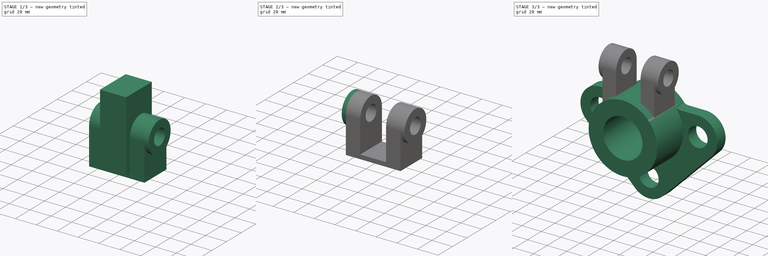
[diagram: build sequence overview — one tinted view per stage of 3, left to right]
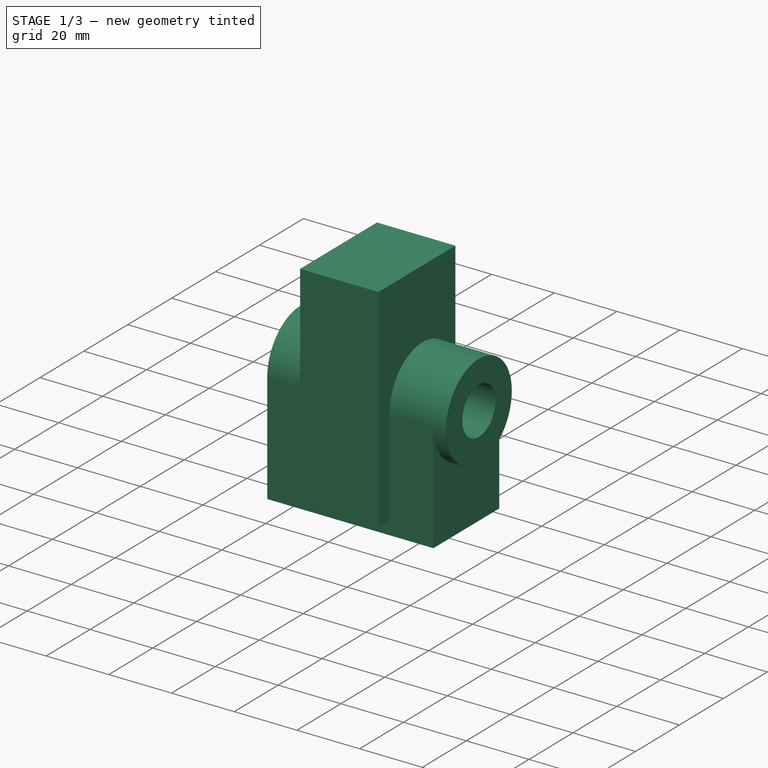
[diagram: stage 1 of 3 — iso view after this stage's code; geometry added in this stage tinted green]
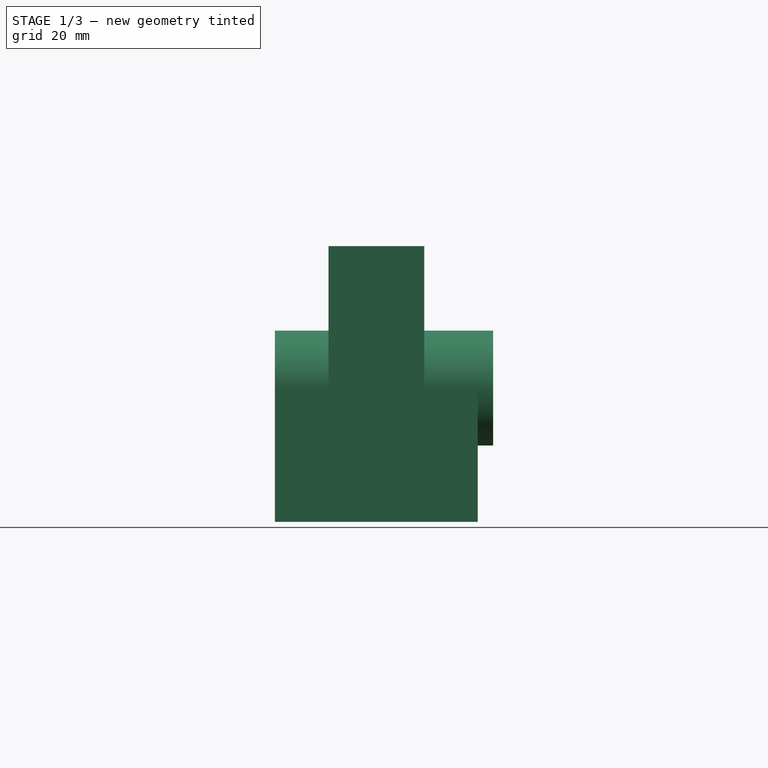
[diagram: stage 1 of 3 — front view after this stage's code; geometry added in this stage tinted green]
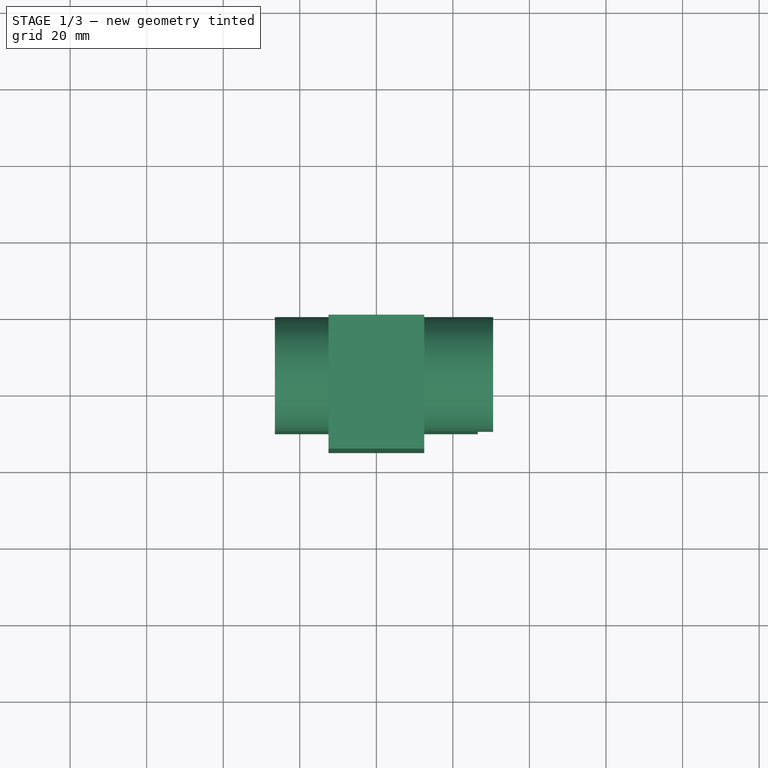
[diagram: stage 1 of 3 — top view after this stage's code; geometry added in this stage tinted green]
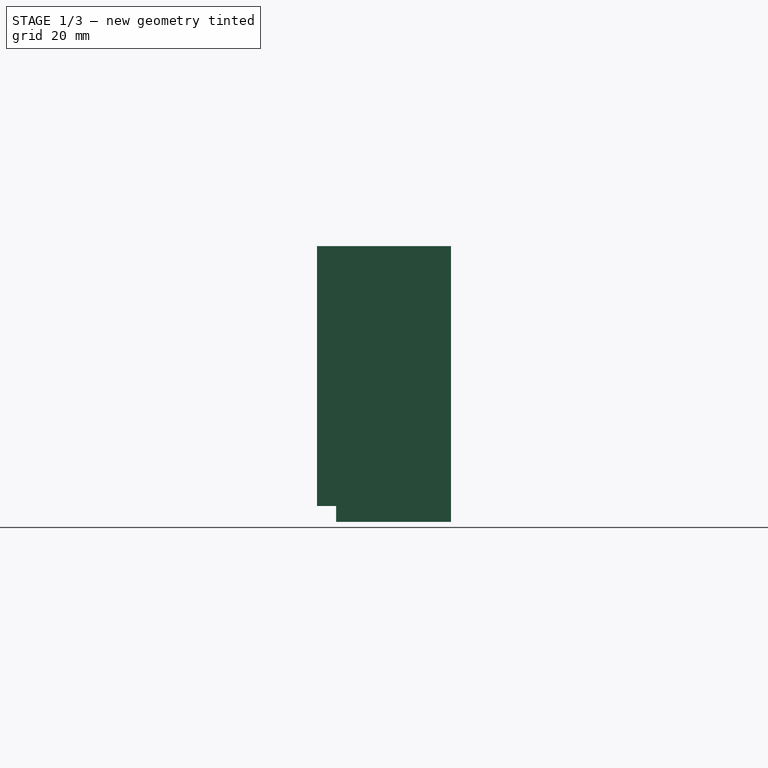
[diagram: stage 1 of 3 — right view after this stage's code; geometry added in this stage tinted green]
FCSTD DOCUMENT  (FreeCAD 0.16R6700 (Git))
Label: ejer8
License: All rights reserved
LicenseURL: http://en.wikipedia.org/wiki/All_rights_reserved
objects: Sketcher::SketchObject×8, PartDesign::Pad×6, PartDesign::Pocket×1, Part::Cut×1
note: 23 computed .brp shape members not serialized (recipe doc carries the construction recipe); baked Part::Feature solids carry a one-line shape summary decoded from their .brp

FEATURE [Sketcher::SketchObject] Sketch003
  Placement = pos=(0,0,0) rot=(0.57735,0.57735,0.57735;2.0944rad)
  sketch-geometry (6):
    g0: LineSegment [constr] StartX=0 StartY=55 StartZ=0 EndX=-15 EndY=55 EndZ=0
    g1: ArcOfCircle CenterX=-15 CenterY=55 CenterZ=0 NormalX=0 NormalY=0 NormalZ=1 Radius=15 StartAngle=6.28133 EndAngle=9.425
    g2: Circle CenterX=-15 CenterY=55 CenterZ=0 NormalX=0 NormalY=0 NormalZ=1 Radius=7.5
    g3: LineSegment StartX=-30 StartY=54.9967 StartZ=0 EndX=-30 EndY=20.06 EndZ=0
    g4: LineSegment StartX=-30 StartY=20.06 StartZ=0 EndX=3.56673e-07 EndY=20.06 EndZ=0
    g5: LineSegment StartX=3.56673e-07 StartY=20.06 StartZ=0 EndX=-2.58777e-05 EndY=54.9721 EndZ=0
  constraints (15):
    c: DistanceX(g0,g0) = 15
    c: PointOnObject(g0,g-2)
    c: DistanceY(g-1,g0) = 55
    c: Horizontal(g0)
    c: Coincident(g0,g1)
    c: Coincident(g0,g2)
    c: Radius(g1) = 15
    c: Radius(g2) = 7.5
    c: Coincident(g3,g4)
    c: Coincident(g4,g5)
    c: DistanceX(g4,g4) = 30
    c: Vertical(g3)
    c: Horizontal(g4)
    c: Coincident(g1,g5)
    c: Coincident(g1,g3)
FEATURE [PartDesign::Pad] Pad002
  Length = 53
  Length2 = 100
  Midplane = true
  Placement = pos=(0,0,0) rot=(0.57735,0.57735,0.57735;2.0944rad)
  Sketch = -> Sketch003
  Type = 0
FEATURE [Sketcher::SketchObject] Sketch004
  ExternalGeometry = -> [Pad002]
  Placement = pos=(26.5,0,0) rot=(0.57735,0.57735,0.57735;2.0944rad)
  Support = -> Pad002 [Face7]
  sketch-geometry (2):
    g0: Circle CenterX=-15 CenterY=55 CenterZ=0 NormalX=0 NormalY=0 NormalZ=1 Radius=15
    g1: Circle CenterX=-15 CenterY=55 CenterZ=0 NormalX=0 NormalY=0 NormalZ=1 Radius=7.51935
  constraints (5):
    c: Coincident(g0,g1)
    c: Coincident(g0,g-4)
    c: Radius(g-4) = 7.5
    c: Radius(g-4) = 7.5
    c: Radius(g0) = 15
FEATURE [PartDesign::Pad] Pad003
  Length = 4
  Length2 = 100
  Placement = pos=(0,0,0) rot=(0.57735,0.57735,0.57735;2.0944rad)
  Sketch = -> Sketch004
  Type = 0
FEATURE [Sketcher::SketchObject] Sketch006
  Placement = pos=(0,0,0) rot=(0.57735,0.57735,0.57735;2.0944rad)
FEATURE [Sketcher::SketchObject] Sketch007
  Placement = pos=(0,0,0) rot=(-1,0,0;4.71239rad)
  sketch-geometry (4):
    g0: LineSegment StartX=-12.5 StartY=92.0677 StartZ=0 EndX=12.5 EndY=92.0677 EndZ=0
    g1: LineSegment StartX=12.5 StartY=92.0677 StartZ=0 EndX=12.5 EndY=24.1999 EndZ=0
    g2: LineSegment StartX=12.5 StartY=24.1999 StartZ=0 EndX=-12.5 EndY=24.1999 EndZ=0
    g3: LineSegment StartX=-12.5 StartY=24.1999 StartZ=0 EndX=-12.5 EndY=92.0677 EndZ=0
  constraints (10):
    c: Coincident(g0,g1)
    c: Coincident(g1,g2)
    c: Coincident(g2,g3)
    c: Coincident(g3,g0)
    c: Horizontal(g0)
    c: Horizontal(g2)
    c: Vertical(g1)
    c: Vertical(g3)
    c: DistanceX(g0,g0) = 25
    c: Symmetric(g0,g0,g-2)
FEATURE [PartDesign::Pad] Pad005
  Length = 35
  Length2 = 100
  Placement = pos=(0,0,0) rot=(-1,0,0;4.71239rad)
  Sketch = -> Sketch007
  Type = 0
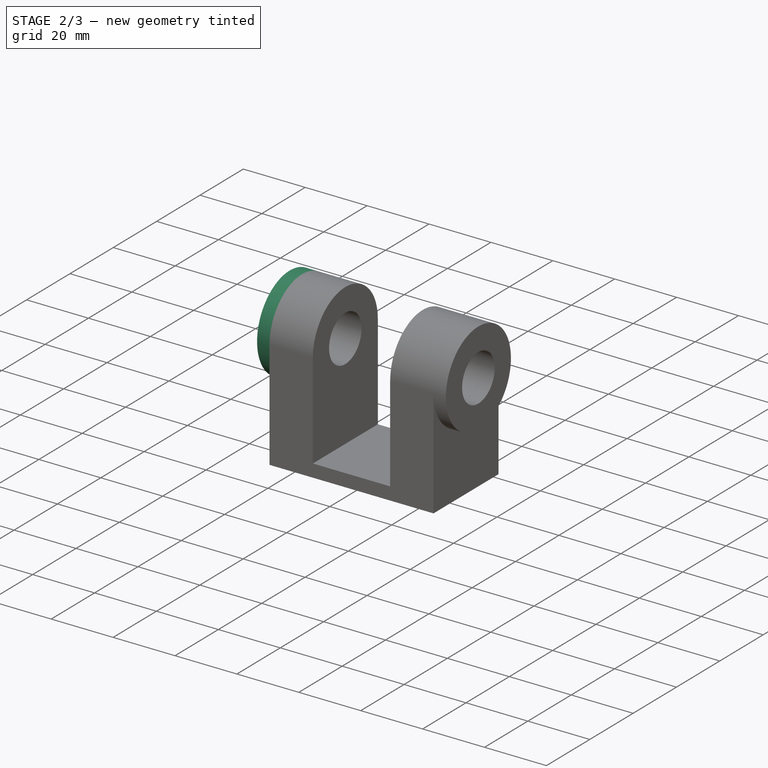
[diagram: stage 2 of 3 — iso view after this stage's code; geometry added in this stage tinted green]
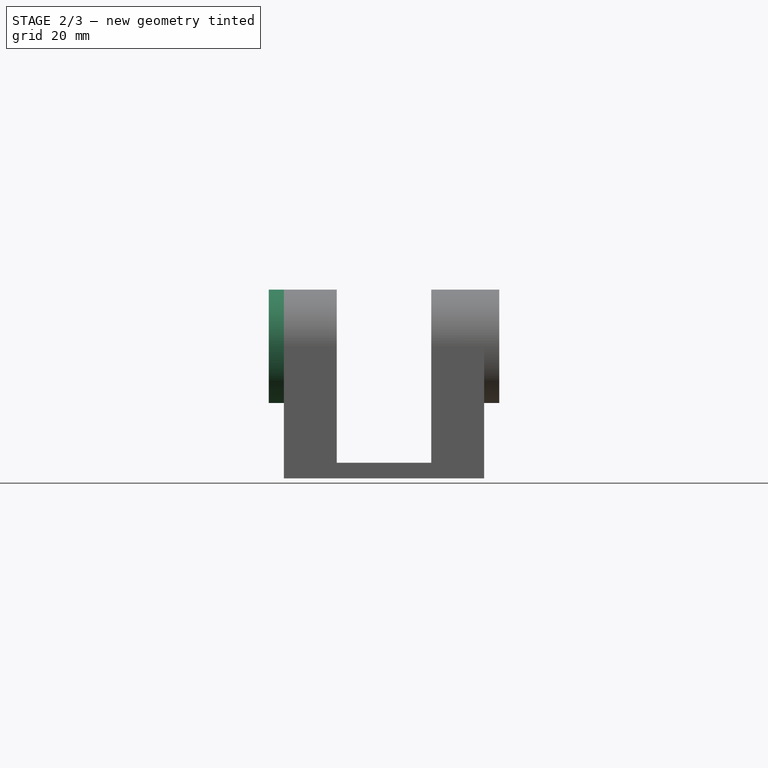
[diagram: stage 2 of 3 — front view after this stage's code; geometry added in this stage tinted green]
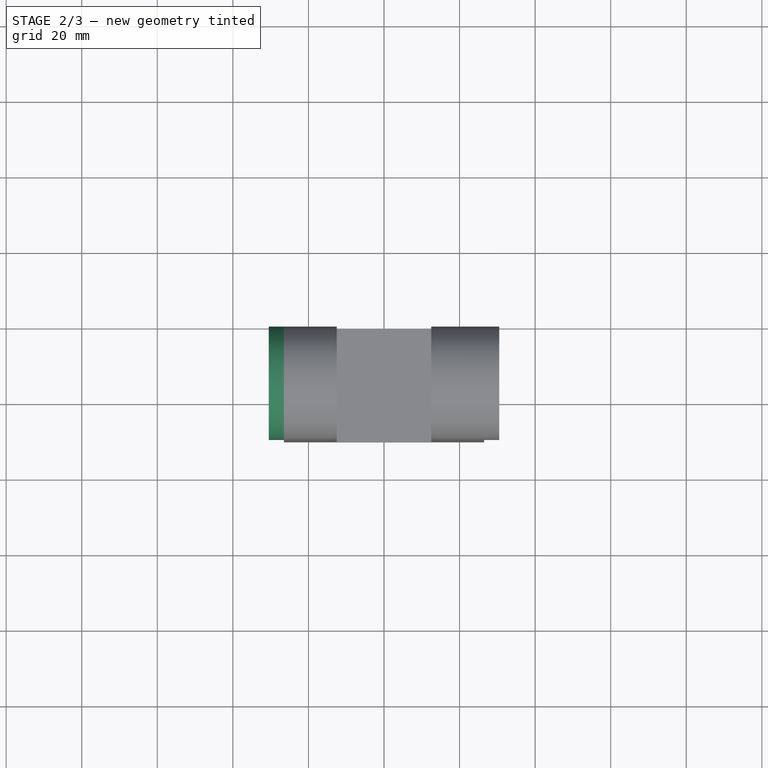
[diagram: stage 2 of 3 — top view after this stage's code; geometry added in this stage tinted green]
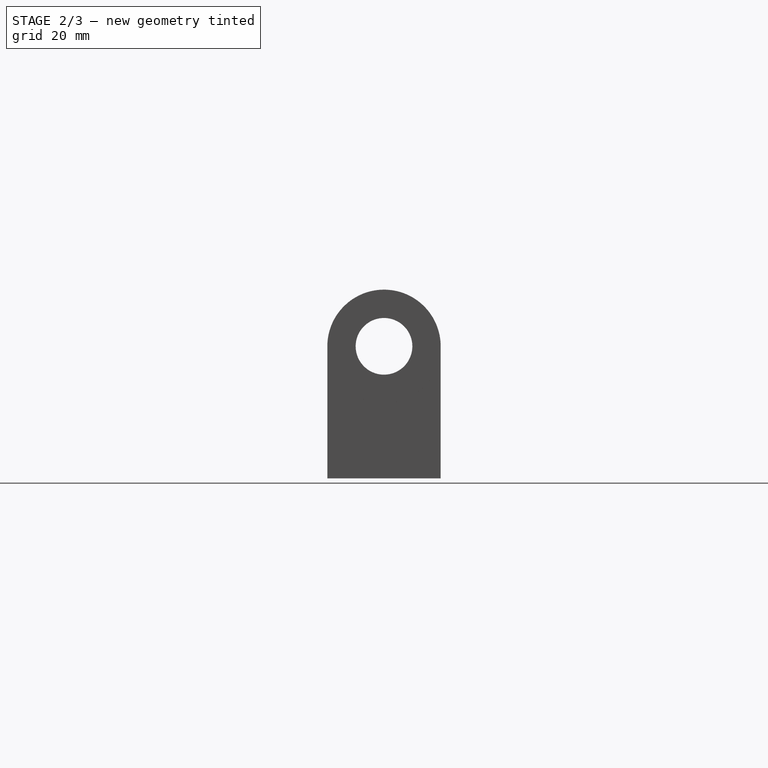
[diagram: stage 2 of 3 — right view after this stage's code; geometry added in this stage tinted green]
FEATURE [Sketcher::SketchObject] Sketch005
  ExternalGeometry = -> [Pad003]
  Placement = pos=(-26.5,0,0) rot=(0.57735,0.57735,-0.57735;4.18879rad)
  Support = -> Pad003 [Face3]
  sketch-geometry (2):
    g0: Circle CenterX=-15 CenterY=-55 CenterZ=0 NormalX=0 NormalY=0 NormalZ=1 Radius=7.5
    g1: Circle CenterX=-15 CenterY=-55 CenterZ=0 NormalX=0 NormalY=0 NormalZ=1 Radius=15
  constraints (4):
    c: Coincident(g0,g1)
    c: Coincident(g0,g-3)
    c: Radius(g1) = 15
    c: Radius(g0) = 7.5
FEATURE [PartDesign::Pad] Pad004
  Length = 4
  Length2 = 100
  Placement = pos=(0,0,0) rot=(0.57735,0.57735,0.57735;2.0944rad)
  Sketch = -> Sketch005
  Type = 0
FEATURE [Part::Cut] Cut
  Base = -> Pad004
  Tool = -> Pad005
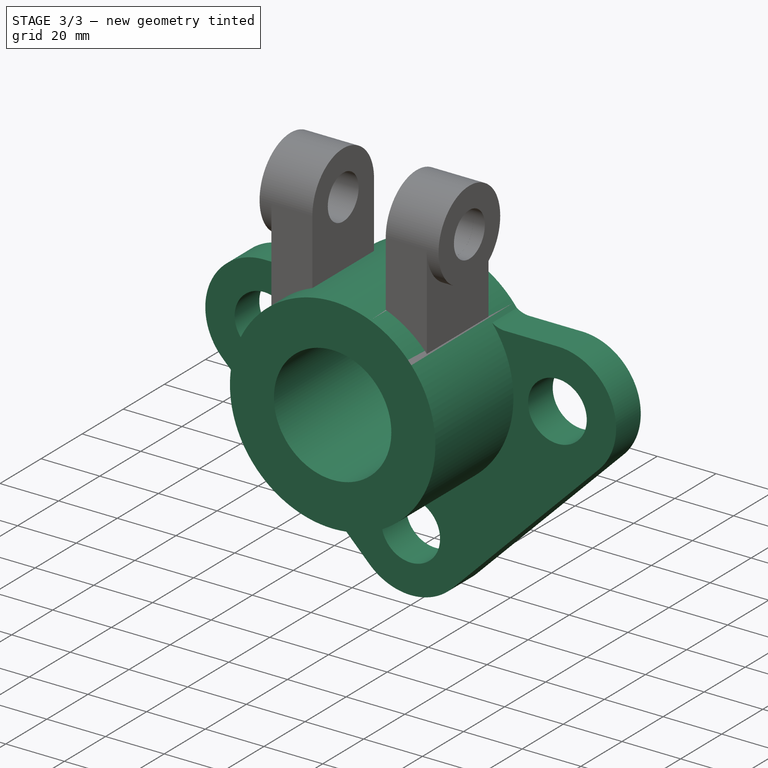
[diagram: stage 3 of 3 — iso view after this stage's code; geometry added in this stage tinted green]
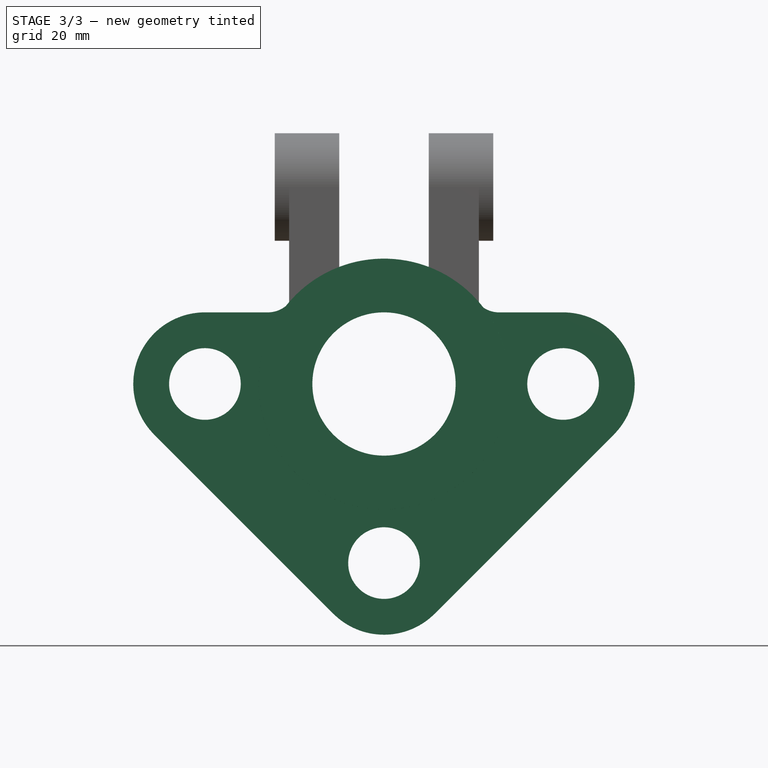
[diagram: stage 3 of 3 — front view after this stage's code; geometry added in this stage tinted green]
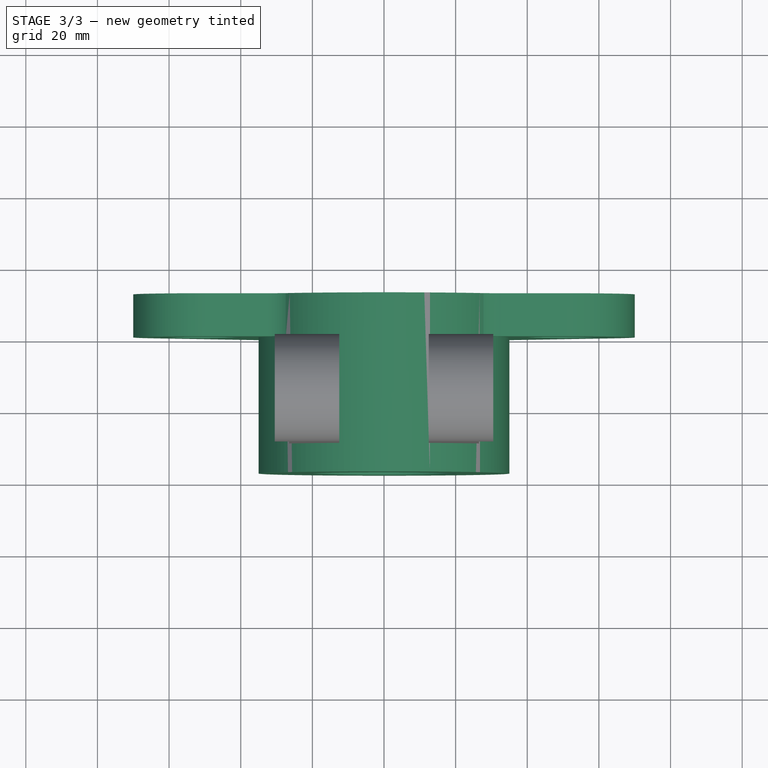
[diagram: stage 3 of 3 — top view after this stage's code; geometry added in this stage tinted green]
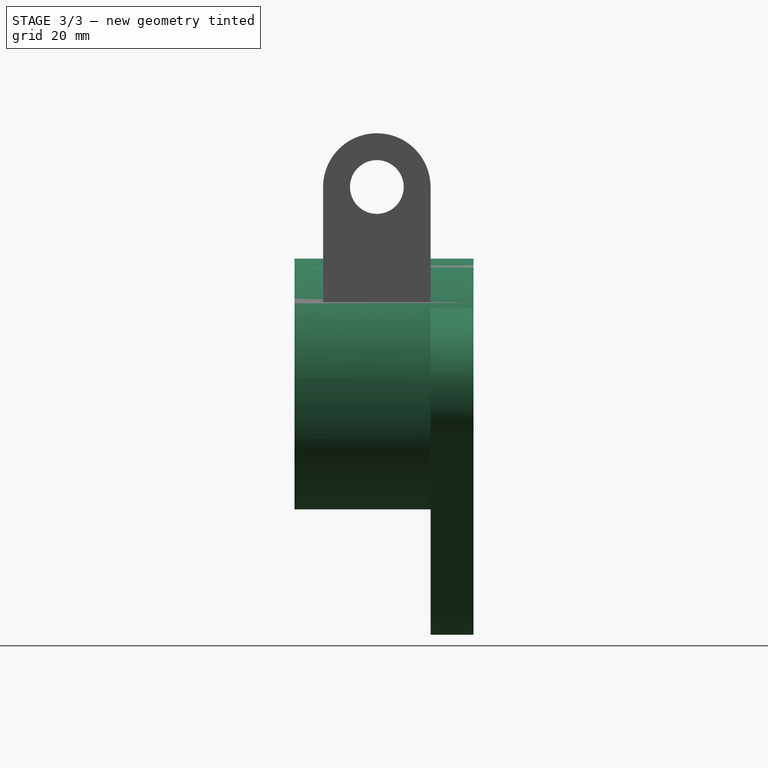
[diagram: stage 3 of 3 — right view after this stage's code; geometry added in this stage tinted green]
FEATURE [Sketcher::SketchObject] Sketch
  Placement = pos=(0,0,0) rot=(1,0,0;1.5708rad)
  sketch-geometry (13):
    g0: ArcOfCircle CenterX=50 CenterY=0 CenterZ=0 NormalX=0 NormalY=0 NormalZ=1 Radius=20 StartAngle=5.49803 EndAngle=7.85398
    g1: ArcOfCircle CenterX=-50 CenterY=0 CenterZ=0 NormalX=0 NormalY=0 NormalZ=1 Radius=20 StartAngle=1.5708 EndAngle=3.92488
    g2: Circle CenterX=-50 CenterY=0 CenterZ=0 NormalX=0 NormalY=0 NormalZ=1 Radius=10
    g3: Circle CenterX=50 CenterY=0 CenterZ=0 NormalX=0 NormalY=0 NormalZ=1 Radius=10
    g4: ArcOfCircle CenterX=0 CenterY=-50 CenterZ=0 NormalX=0 NormalY=0 NormalZ=1 Radius=20 StartAngle=3.9224 EndAngle=5.50312
    g5: Circle CenterX=0 CenterY=-50 CenterZ=0 NormalX=0 NormalY=0 NormalZ=1 Radius=10
    g6: ArcOfCircle CenterX=0 CenterY=0 CenterZ=0 NormalX=0 NormalY=0 NormalZ=1 Radius=35 StartAngle=0.654691 EndAngle=2.47079
    g7: LineSegment StartX=14.2174 StartY=-64.0665 StartZ=0 EndX=64.1456 EndY=-14.1387 EndZ=0
    g8: LineSegment StartX=-14.2069 StartY=-64.0771 StartZ=0 EndX=-64.172 EndY=-14.1122 EndZ=0
    g9: LineSegment StartX=-50 StartY=20 StartZ=0 EndX=-32.6343 EndY=20 EndZ=0
    g10: ArcOfCircle CenterX=-32.4217 CenterY=27.9972 CenterZ=0 NormalX=0 NormalY=0 NormalZ=1 Radius=8 StartAngle=4.68581 EndAngle=5.38839
    g11: ArcOfCircle CenterX=32.1733 CenterY=27.9867 CenterZ=0 NormalX=0 NormalY=0 NormalZ=1 Radius=8 StartAngle=4.12852 EndAngle=4.77003
    g12: LineSegment StartX=32.6341 StartY=20 StartZ=0 EndX=50 EndY=20 EndZ=0
  constraints (34):
    c: Coincident(g1,g2)
    c: Coincident(g0,g3)
    c: Coincident(g4,g5)
    c: PointOnObject(g1,g-1)
    c: PointOnObject(g0,g-1)
    c: PointOnObject(g4,g-2)
    c: Radius(g0) = 20
    c: Equal(g0,g1)
    c: Equal(g0,g4)
    c: Radius(g2) = 10
    c: Equal(g2,g3)
    c: Equal(g2,g5)
    c: DistanceX(g1,g4) = 50
    c: DistanceX(g4,g0) = 50
    c: DistanceY(g4,g0) = 50
    c: Coincident(g6,g-1)
    c: Radius(g6) = 35
    c: Coincident(g0,g7)
    c: Coincident(g1,g8)
    c: Coincident(g4,g8)
    c: Coincident(g4,g7)
    c: PointOnObject(g10,g6)
    c: PointOnObject(g11,g9)
    c: Radius(g11) = 8
    c: PointOnObject(g11,g6)
    c: Radius(g10) = 8
    c: Coincident(g1,g9)
    c: Coincident(g0,g12)
    c: Tangent(g9,g12)
    c: Coincident(g9,g10)
    c: PointOnObject(g12,g11)
    c: PointOnObject(g11,g6)
    c: Coincident(g6,g11)
    c: Coincident(g6,g10)
FEATURE [PartDesign::Pad] Pad
  Length = 12
  Length2 = 100
  Placement = pos=(0,0,0) rot=(1,0,0;1.5708rad)
  Reversed = true
  Sketch = -> Sketch
  Type = 0
FEATURE [Sketcher::SketchObject] Sketch001
  Placement = pos=(0,0,0) rot=(1,0,0;1.5708rad)
  Support = -> Pad [Face14]
  sketch-geometry (1):
    g0: Circle CenterX=0 CenterY=0 CenterZ=0 NormalX=0 NormalY=0 NormalZ=1 Radius=35
  constraints (2):
    c: Coincident(g0,g-1)
    c: Radius(g0) = 35
FEATURE [PartDesign::Pad] Pad001
  Length = 38
  Length2 = 100
  Placement = pos=(0,0,0) rot=(1,0,0;1.5708rad)
  Sketch = -> Sketch001
  Type = 0
FEATURE [Sketcher::SketchObject] Sketch002
  Placement = pos=(0,-38,0) rot=(1,0,0;1.5708rad)
  Support = -> Pad001 [Face1]
  sketch-geometry (1):
    g0: Circle CenterX=0 CenterY=0 CenterZ=0 NormalX=0 NormalY=0 NormalZ=1 Radius=20
  constraints (2):
    c: Coincident(g0,g-1)
    c: Radius(g0) = 20
FEATURE [PartDesign::Pocket] Pocket
  Length = 5
  Placement = pos=(0,0,0) rot=(1,0,0;1.5708rad)
  Sketch = -> Sketch002
  Type = 1
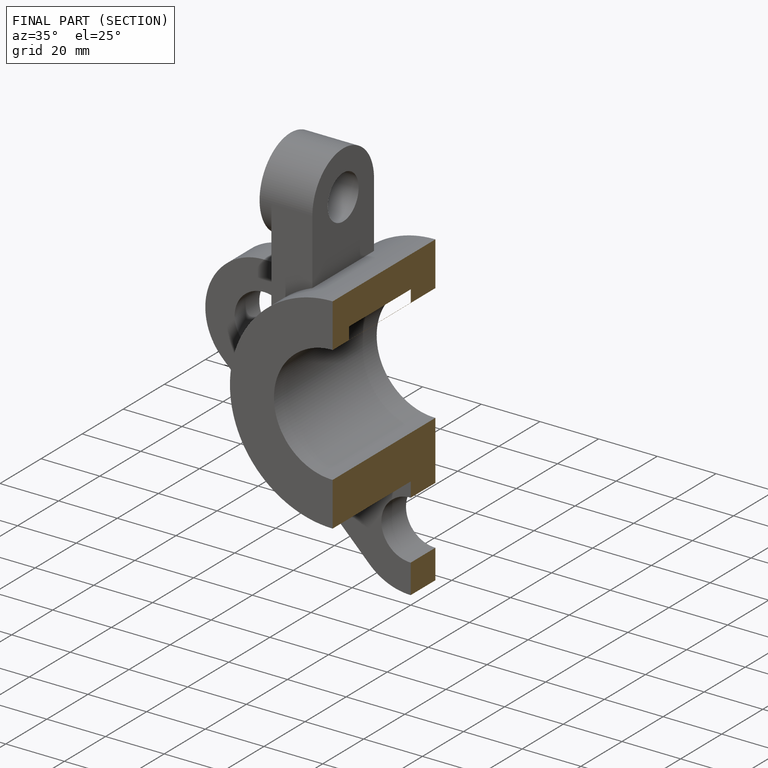
[diagram: finished part — half-section view (interior)]
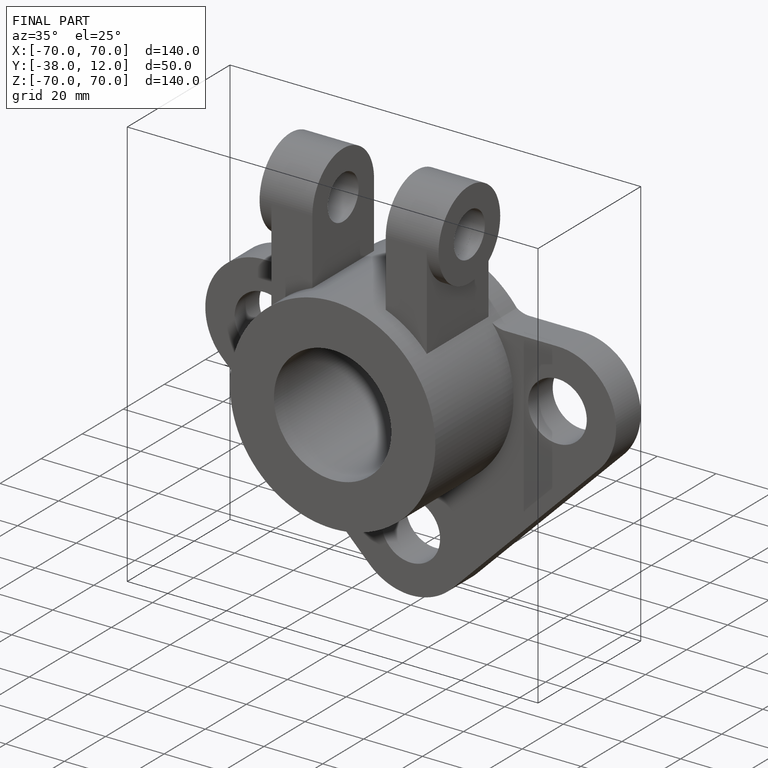
[diagram: finished part — iso view with bounding-box wireframe]
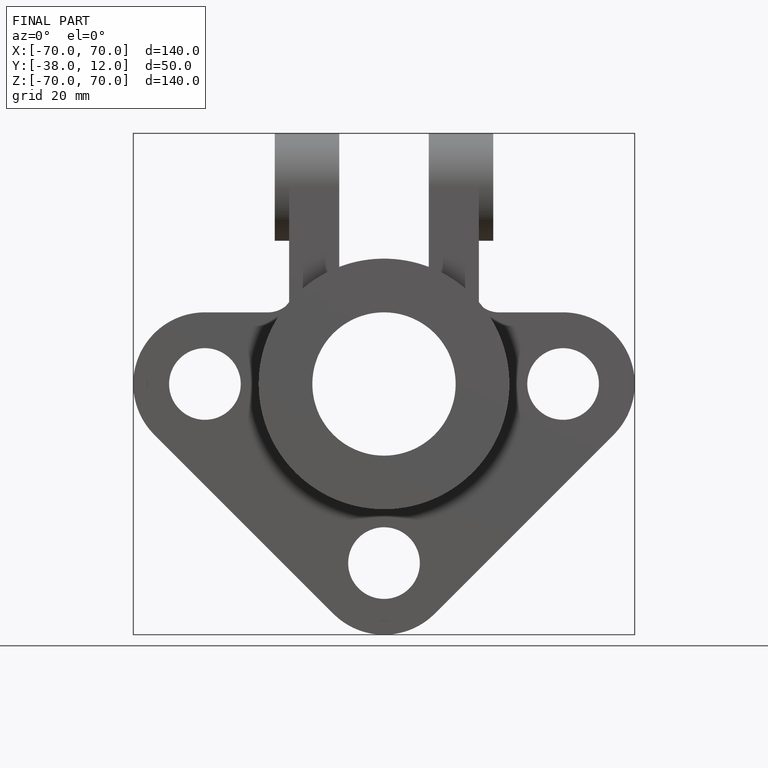
[diagram: finished part — front view with bounding-box wireframe]
